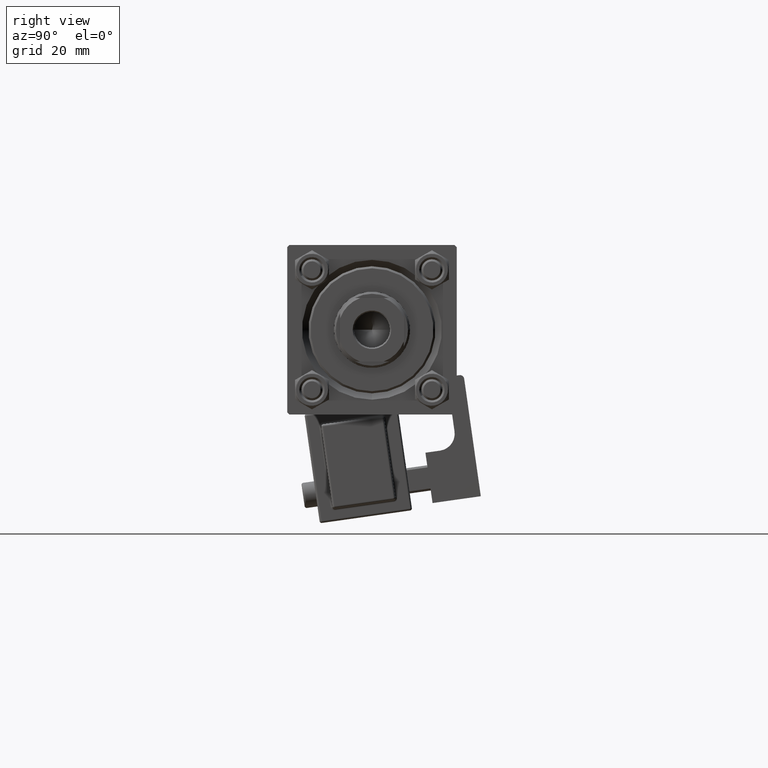
[diagram: clean part render]
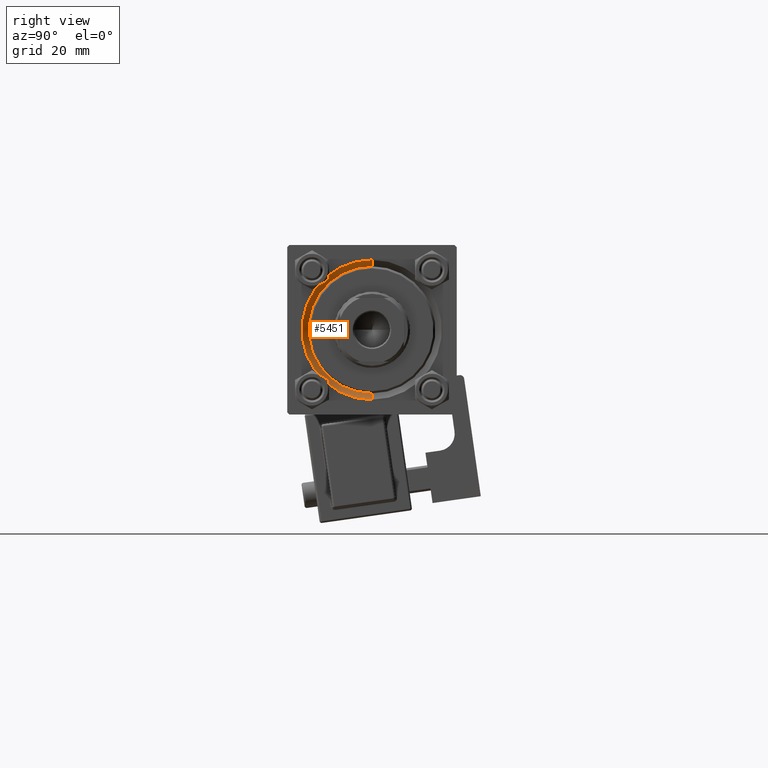
[diagram: same view with one face highlighted and labeled with its STEP entity id]
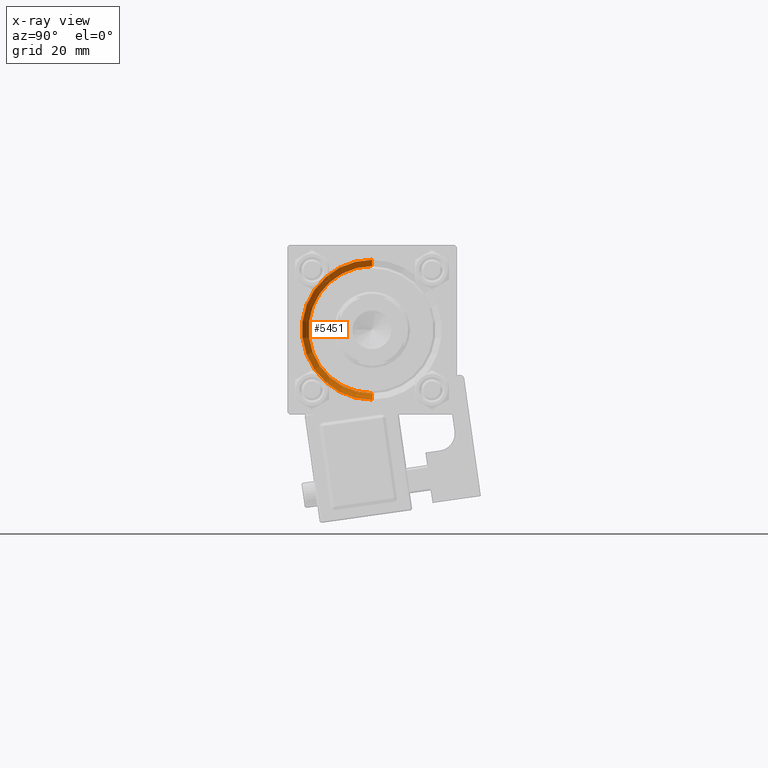
[diagram: x-ray of the same camera — body ghosted, the highlighted face saturated]
A machine part, right view. The second image highlights one B-rep face of the part: STEP entity #5451.
The next image is the same camera in x-ray: the body ghosted, the highlighted face saturated — about 0% of this face is hidden behind the body in this view.
In plain terms, the highlighted conical surface has half-angle 45 deg.
Its self-contained STEP definition (entity closure, byte-faithful):
#549 = ORIENTED_EDGE ( 'NONE', *, *, #35554, .T. ) ;
#1716 = CARTESIAN_POINT ( 'NONE',  ( 117.5000000000000000, 0.000000000000000000, -15.00000000000000000 ) ) ;
#4547 = CARTESIAN_POINT ( 'NONE',  ( 119.0000000000000142, 0.000000000000000000, 0.000000000000000000 ) ) ;
#5058 = DIRECTION ( 'NONE',  ( -1.000000000000000000, -0.000000000000000000, -0.000000000000000000 ) ) ;
#5151 = CIRCLE ( 'NONE', #16865, 15.00000000000000000 ) ;
#5451 = ADVANCED_FACE ( 'NONE', ( #47309 ), #28608, .F. ) ;
#5856 = EDGE_CURVE ( 'NONE', #43583, #44353, #5151, .T. ) ;
#7012 = CARTESIAN_POINT ( 'NONE',  ( 117.5000000000000000, 1.836970198721029589E-15, 15.00000000000000000 ) ) ;
#7623 = DIRECTION ( 'NONE',  ( 0.000000000000000000, 0.000000000000000000, -1.000000000000000000 ) ) ;
#9308 = DIRECTION ( 'NONE',  ( 0.000000000000000000, 0.000000000000000000, 1.000000000000000000 ) ) ;
#9539 = EDGE_CURVE ( 'NONE', #44353, #18208, #34031, .T. ) ;
#10311 = VECTOR ( 'NONE', #14053, 1000.000000000000114 ) ;
#11525 = CARTESIAN_POINT ( 'NONE',  ( 117.5000000000000000, 1.836970198721029589E-15, 15.00000000000000000 ) ) ;
#11562 = CARTESIAN_POINT ( 'NONE',  ( 117.5000000000000000, 0.000000000000000000, 0.000000000000000000 ) ) ;
#14053 = DIRECTION ( 'NONE',  ( 0.7071067811865474617, 0.000000000000000000, -0.7071067811865474617 ) ) ;
#16865 = AXIS2_PLACEMENT_3D ( 'NONE', #32949, #33212, #9308 ) ;
#18096 = LINE ( 'NONE', #11525, #48274 ) ;
#18208 = VERTEX_POINT ( 'NONE', #43055 ) ;
#20020 = DIRECTION ( 'NONE',  ( 0.000000000000000000, 0.000000000000000000, 1.000000000000000000 ) ) ;
#21661 = CARTESIAN_POINT ( 'NONE',  ( 117.5000000000000000, 0.000000000000000000, -15.00000000000000000 ) ) ;
#22688 = ORIENTED_EDGE ( 'NONE', *, *, #43019, .F. ) ;
#23648 = CIRCLE ( 'NONE', #39611, 16.50000000000001421 ) ;
#26058 = AXIS2_PLACEMENT_3D ( 'NONE', #11562, #27580, #7623 ) ;
#27580 = DIRECTION ( 'NONE',  ( 1.000000000000000000, 0.000000000000000000, 0.000000000000000000 ) ) ;
#28608 = CONICAL_SURFACE ( 'NONE', #26058, 15.00000000000000000, 0.7853981633974482790 ) ;
#31110 = EDGE_LOOP ( 'NONE', ( #49782, #549, #22688, #49661 ) ) ;
#32949 = CARTESIAN_POINT ( 'NONE',  ( 117.5000000000000000, 0.000000000000000000, 0.000000000000000000 ) ) ;
#33212 = DIRECTION ( 'NONE',  ( 1.000000000000000000, 0.000000000000000000, 0.000000000000000000 ) ) ;
#34031 = LINE ( 'NONE', #1716, #10311 ) ;
#34653 = DIRECTION ( 'NONE',  ( 0.7071067811865474617, 8.659560562354932858E-17, 0.7071067811865474617 ) ) ;
#34926 = CARTESIAN_POINT ( 'NONE',  ( 119.0000000000000142, 2.020667218593134678E-15, 16.50000000000001421 ) ) ;
#35554 = EDGE_CURVE ( 'NONE', #43583, #49578, #18096, .T. ) ;
#39611 = AXIS2_PLACEMENT_3D ( 'NONE', #4547, #5058, #20020 ) ;
#43019 = EDGE_CURVE ( 'NONE', #18208, #49578, #23648, .T. ) ;
#43055 = CARTESIAN_POINT ( 'NONE',  ( 119.0000000000000142, 0.000000000000000000, -16.50000000000001421 ) ) ;
#43583 = VERTEX_POINT ( 'NONE', #7012 ) ;
#44353 = VERTEX_POINT ( 'NONE', #21661 ) ;
#47309 = FACE_OUTER_BOUND ( 'NONE', #31110, .T. ) ;
#48274 = VECTOR ( 'NONE', #34653, 1000.000000000000114 ) ;
#49578 = VERTEX_POINT ( 'NONE', #34926 ) ;
#49661 = ORIENTED_EDGE ( 'NONE', *, *, #9539, .F. ) ;
#49782 = ORIENTED_EDGE ( 'NONE', *, *, #5856, .F. ) ;